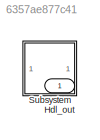
MODEL slx_6357ae877c41
KIND model
CONFIG AbsTol = auto
CONFIG EnableMultiTasking = off
CONFIG FixedStep = auto
CONFIG MaxStep = auto
CONFIG MinStep = auto
CONFIG RelTol = 1e-3
CONFIG SampleTimeConstraint = Unconstrained
CONFIG SolverName = VariableStepAuto
CONFIG StartTime = 0.0
CONFIG StopTime = 10.0
BLOCK [Outport] Hdl_out
  OutDataTypeStr = uint8
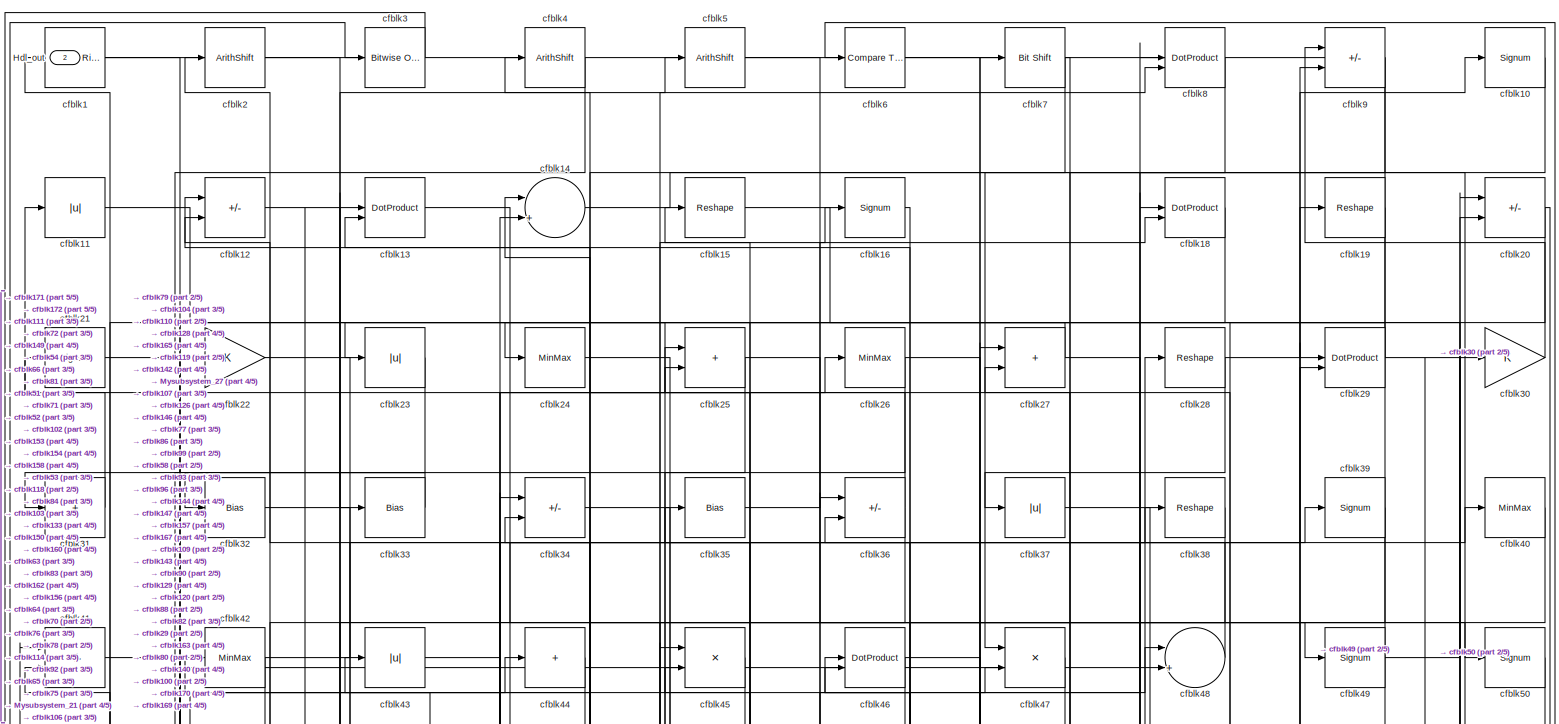
[diagram: Subsystem - part 1/5, full width, top band]
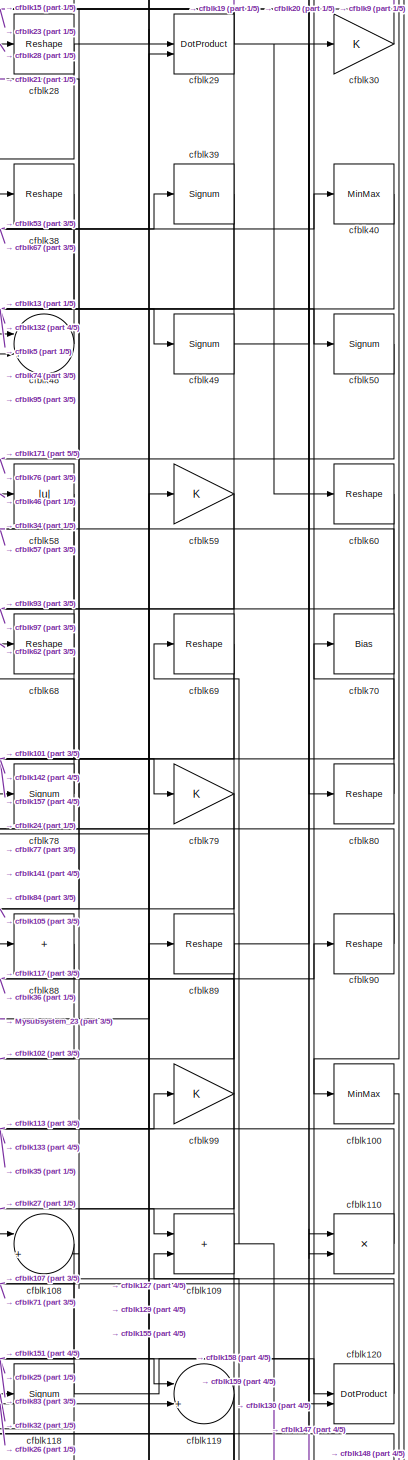
[diagram: Subsystem - part 2/5, middle right region]
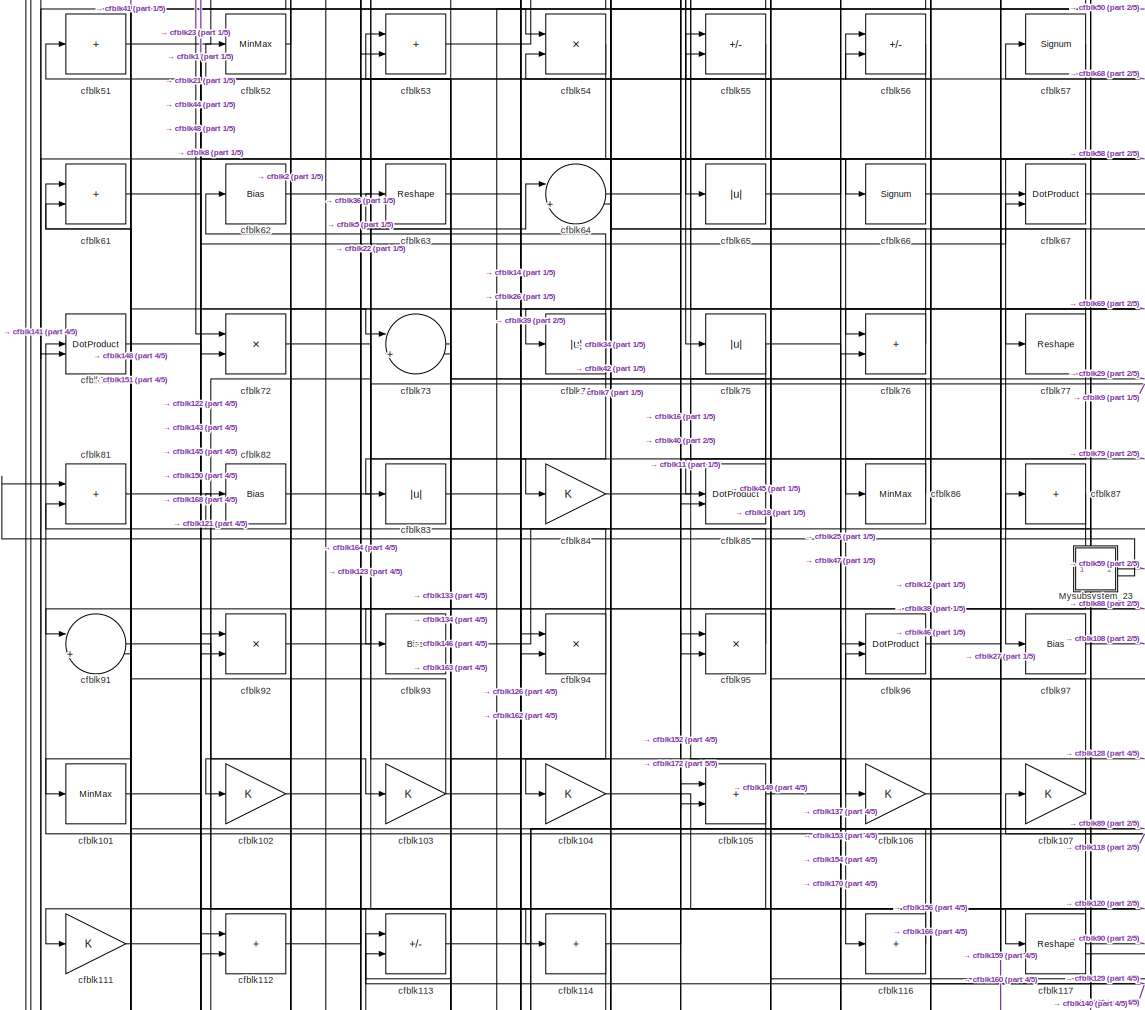
[diagram: Subsystem - part 3/5, central region]
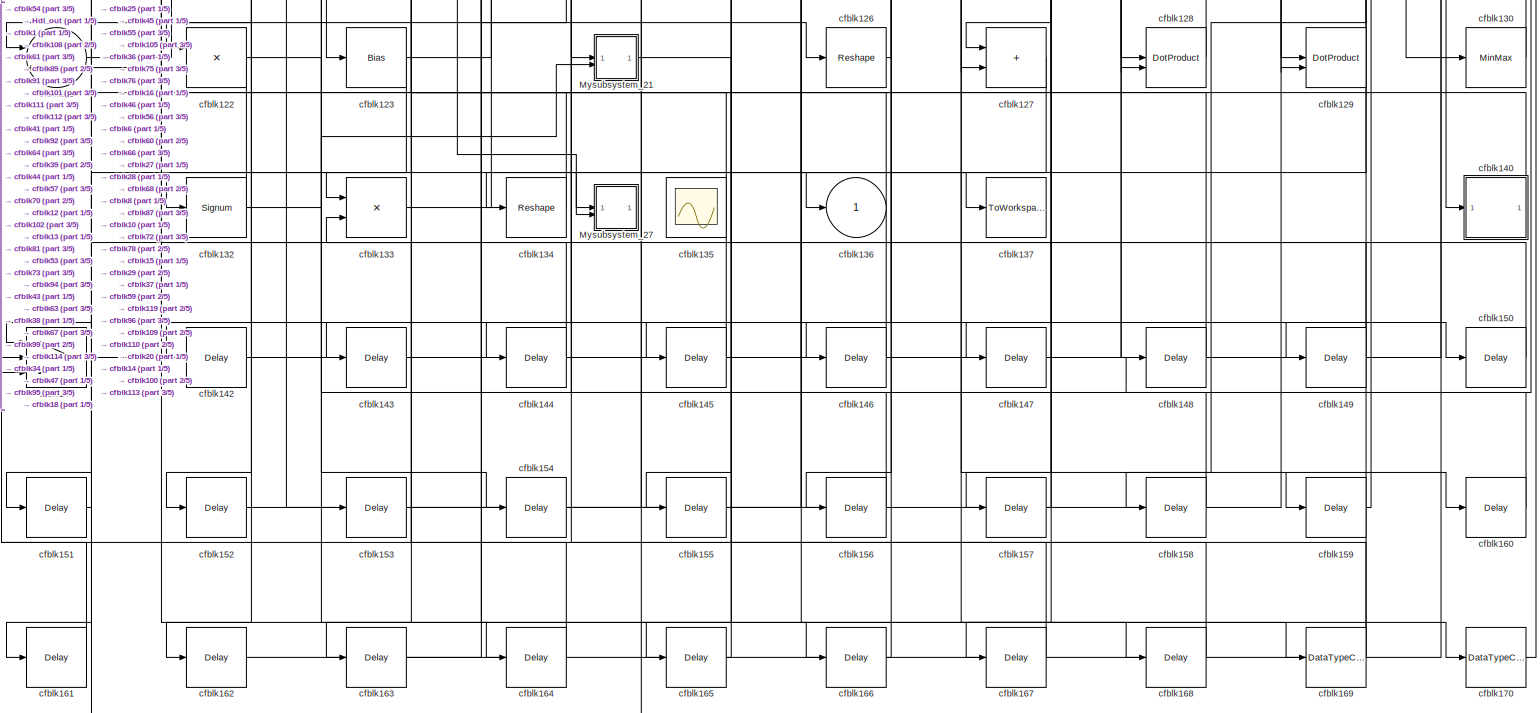
[diagram: Subsystem - part 4/5, full width, bottom band]
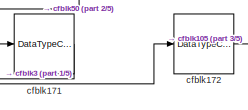
[diagram: Subsystem - part 5/5, bottom left region]
BLOCK [SubSystem] Subsystem
BLOCK [Outport] Subsystem/Hdl_out
  OutDataTypeStr = uint8
  Port = 2
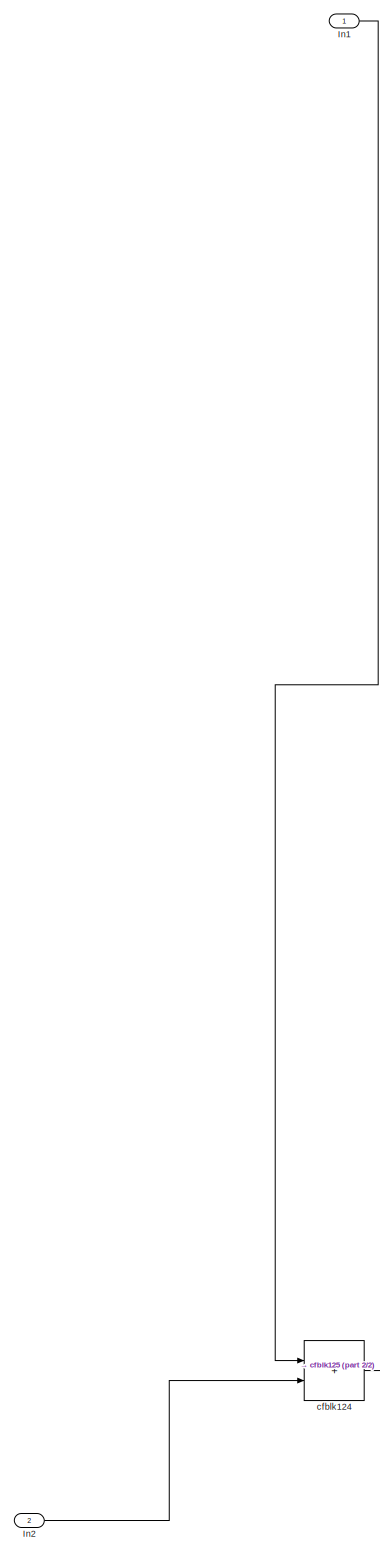
[diagram: Subsystem/Mysubsystem_21 - part 1/2, center side, full height]
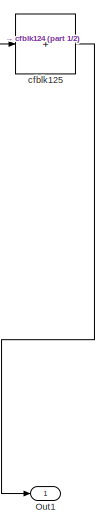
[diagram: Subsystem/Mysubsystem_21 - part 2/2, bottom right region]
BLOCK [SubSystem] Subsystem/Mysubsystem_21
  RTWFcnName = Mysubsystem_21
  RTWFcnNameOpts = User specified
  RTWFileNameOpts = Use function name
  RTWSystemCode = Reusable function
  TreatAsAtomicUnit = on
BLOCK [Inport] Subsystem/Mysubsystem_21/In1
BLOCK [Inport] Subsystem/Mysubsystem_21/In2
  Port = 2
BLOCK [Outport] Subsystem/Mysubsystem_21/Out1
BLOCK [Sum] Subsystem/Mysubsystem_21/cfblk124
  IconShape = rectangular
BLOCK [Sum] Subsystem/Mysubsystem_21/cfblk125
  IconShape = rectangular
  Inputs = +
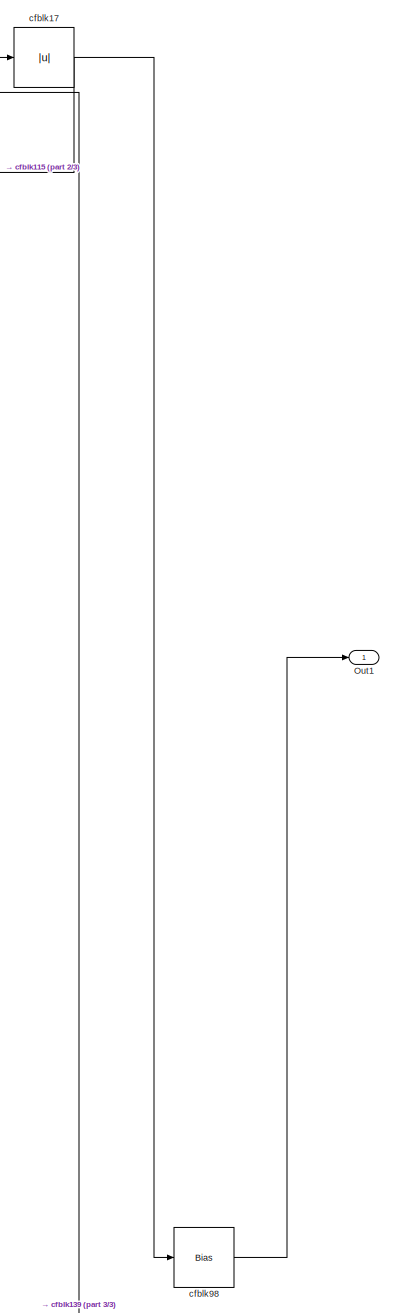
[diagram: Subsystem/Mysubsystem_23 - part 1/3, middle right region]
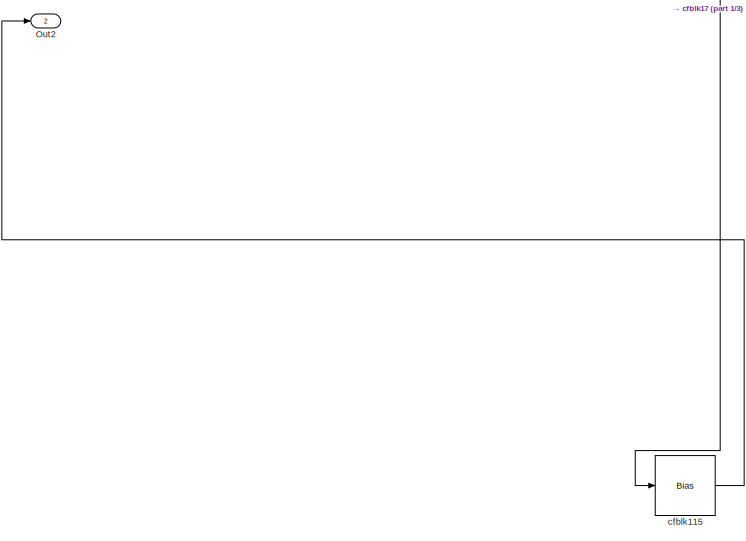
[diagram: Subsystem/Mysubsystem_23 - part 2/3, bottom left region]
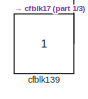
[diagram: Subsystem/Mysubsystem_23 - part 3/3, bottom right region]
BLOCK [SubSystem] Subsystem/Mysubsystem_23
  RTWFcnName = Mysubsystem_23
  RTWFcnNameOpts = User specified
  RTWFileNameOpts = Use function name
  RTWSystemCode = Reusable function
  TreatAsAtomicUnit = on
BLOCK [Outport] Subsystem/Mysubsystem_23/Out1
BLOCK [Outport] Subsystem/Mysubsystem_23/Out2
  Port = 2
BLOCK [Bias] Subsystem/Mysubsystem_23/cfblk115
  Bias = 0.0
  SaturateOnIntegerOverflow = off
BLOCK [Constant] Subsystem/Mysubsystem_23/cfblk139
  SampleTime = -1
BLOCK [Abs] Subsystem/Mysubsystem_23/cfblk17
  SaturateOnIntegerOverflow = off
BLOCK [Bias] Subsystem/Mysubsystem_23/cfblk98
  Bias = 0.0
  SaturateOnIntegerOverflow = off
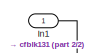
[diagram: Subsystem/Mysubsystem_27 - part 1/2, top right region]
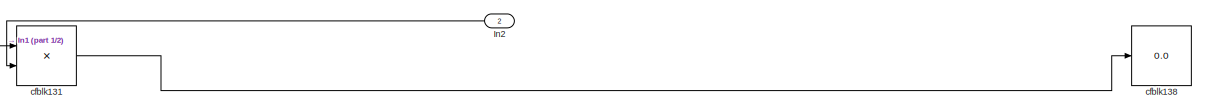
[diagram: Subsystem/Mysubsystem_27 - part 2/2, full width, bottom band]
BLOCK [SubSystem] Subsystem/Mysubsystem_27
  RTWFcnName = Mysubsystem_27
  RTWFcnNameOpts = User specified
  RTWFileNameOpts = Use function name
  RTWSystemCode = Reusable function
  TreatAsAtomicUnit = on
BLOCK [Inport] Subsystem/Mysubsystem_27/In1
BLOCK [Inport] Subsystem/Mysubsystem_27/In2
  Port = 2
BLOCK [Product] Subsystem/Mysubsystem_27/cfblk131
  Inputs = */
  RndMeth = Zero
  SaturateOnIntegerOverflow = on
BLOCK [Display] Subsystem/Mysubsystem_27/cfblk138
  Decimation = 1
BLOCK [Reference] Subsystem/cfblk1  REF=hdlsllib/Logic and Bit
Operations/Detect Rise
Nonnegative
  SourceBlock = hdlsllib/Logic and Bit\nOperations/Detect Rise\nNonnegative
  SourceType = Detect Rise Nonnegative
BLOCK [Signum] Subsystem/cfblk10
BLOCK [MinMax] Subsystem/cfblk100
  OutDataTypeStr = uint8
BLOCK [MinMax] Subsystem/cfblk101
  OutDataTypeStr = uint8
BLOCK [Gain] Subsystem/cfblk102
  OutDataTypeStr = uint8
BLOCK [Gain] Subsystem/cfblk103
  OutDataTypeStr = uint8
BLOCK [Gain] Subsystem/cfblk104
  OutDataTypeStr = uint8
BLOCK [Sum] Subsystem/cfblk105
  IconShape = rectangular
  OutDataTypeStr = uint8
BLOCK [Gain] Subsystem/cfblk106
  OutDataTypeStr = uint8
BLOCK [Gain] Subsystem/cfblk107
  OutDataTypeStr = uint8
BLOCK [Sum] Subsystem/cfblk108
  Inputs = |++
  OutDataTypeStr = uint8
BLOCK [Sum] Subsystem/cfblk109
  IconShape = rectangular
  OutDataTypeStr = uint8
BLOCK [Abs] Subsystem/cfblk11
  OutDataTypeStr = uint8
  SaturateOnIntegerOverflow = off
BLOCK [Product] Subsystem/cfblk110
  Inputs = */
  OutDataTypeStr = uint8
  RndMeth = Zero
  SaturateOnIntegerOverflow = on
BLOCK [Gain] Subsystem/cfblk111
  OutDataTypeStr = uint8
BLOCK [Sum] Subsystem/cfblk112
  IconShape = rectangular
  OutDataTypeStr = uint8
BLOCK [Sum] Subsystem/cfblk113
  IconShape = rectangular
  Inputs = +-
  OutDataTypeStr = uint8
BLOCK [Sum] Subsystem/cfblk114
  IconShape = rectangular
  Inputs = +
  OutDataTypeStr = uint8
BLOCK [Sum] Subsystem/cfblk116
  IconShape = rectangular
  Inputs = +
  OutDataTypeStr = uint8
BLOCK [Reshape] Subsystem/cfblk117
BLOCK [Signum] Subsystem/cfblk118
BLOCK [Sum] Subsystem/cfblk119
  Inputs = |++
  OutDataTypeStr = uint8
BLOCK [Sum] Subsystem/cfblk12
  IconShape = rectangular
  Inputs = +-
  OutDataTypeStr = uint8
BLOCK [DotProduct] Subsystem/cfblk120
  OutDataTypeStr = uint8
BLOCK [Sum] Subsystem/cfblk121
  Inputs = |++
  OutDataTypeStr = uint8
BLOCK [Product] Subsystem/cfblk122
  Inputs = */
  OutDataTypeStr = uint8
  RndMeth = Zero
  SaturateOnIntegerOverflow = on
BLOCK [Bias] Subsystem/cfblk123
  Bias = 0.0
  SaturateOnIntegerOverflow = off
BLOCK [Reshape] Subsystem/cfblk126
BLOCK [Sum] Subsystem/cfblk127
  IconShape = rectangular
  OutDataTypeStr = uint8
BLOCK [DotProduct] Subsystem/cfblk128
  OutDataTypeStr = uint8
BLOCK [DotProduct] Subsystem/cfblk129
  OutDataTypeStr = uint8
BLOCK [DotProduct] Subsystem/cfblk13
  OutDataTypeStr = uint8
BLOCK [MinMax] Subsystem/cfblk130
  OutDataTypeStr = uint8
BLOCK [Signum] Subsystem/cfblk132
BLOCK [Product] Subsystem/cfblk133
  Inputs = */
  OutDataTypeStr = uint8
  RndMeth = Zero
  SaturateOnIntegerOverflow = on
BLOCK [Reshape] Subsystem/cfblk134
BLOCK [Scope] Subsystem/cfblk135
  Floating = on
  NumInputPorts = 1
  ScopeSpecificationString = Simulink.scopes.TimeScopeBlockCfg('CurrentConfiguration', extmgr.ConfigurationSet(extmgr.Configuration('Core','General UI',true,'FigureColor',[0.156862745098039 0.156862745098039 0.156862745098039]),extmgr.Configuration('Core','Source UI',true),extmgr.Configuration('Sources','WiredSimulink',true,'DataLoggingSaveFormat','StructureWithTime','DataLoggingLimitDataPoints',true,'DataLoggingDecimation','...<+2674ch>
BLOCK [Outport] Subsystem/cfblk136
  OutDataTypeStr = uint8
  VectorParamsAs1DForOutWhenUnconnected = off
BLOCK [ToWorkspace] Subsystem/cfblk137
  MaxDataPoints = inf
  SampleTime = -1
  SaveFormat = Timeseries
  VariableName = simout
BLOCK [Sum] Subsystem/cfblk14
  Inputs = |++
  OutDataTypeStr = uint8
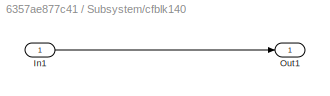
BLOCK [SubSystem] Subsystem/cfblk140
  LibrarySourceBlock = hdlsllib/Ports &\nSubsystems/Subsystem
BLOCK [Inport] Subsystem/cfblk140/In1
BLOCK [Outport] Subsystem/cfblk140/Out1
BLOCK [Switch] Subsystem/cfblk141
  InputSameDT = off
  OutDataTypeStr = uint8
  SaturateOnIntegerOverflow = off
BLOCK [Delay] Subsystem/cfblk142
  InputPortMap = u0
  SampleTime = 1
BLOCK [Delay] Subsystem/cfblk143
  InputPortMap = u0
  SampleTime = 1
BLOCK [Delay] Subsystem/cfblk144
  InputPortMap = u0
  SampleTime = 1
BLOCK [Delay] Subsystem/cfblk145
  InputPortMap = u0
  SampleTime = 1
BLOCK [Delay] Subsystem/cfblk146
  InputPortMap = u0
  SampleTime = 1
BLOCK [Delay] Subsystem/cfblk147
  InputPortMap = u0
  SampleTime = 1
BLOCK [Delay] Subsystem/cfblk148
  InputPortMap = u0
  SampleTime = 1
BLOCK [Delay] Subsystem/cfblk149
  InputPortMap = u0
  SampleTime = 1
BLOCK [Reshape] Subsystem/cfblk15
BLOCK [Delay] Subsystem/cfblk150
  InputPortMap = u0
  SampleTime = 1
BLOCK [Delay] Subsystem/cfblk151
  InputPortMap = u0
  SampleTime = 1
BLOCK [Delay] Subsystem/cfblk152
  InputPortMap = u0
  SampleTime = 1
BLOCK [Delay] Subsystem/cfblk153
  InputPortMap = u0
  SampleTime = 1
BLOCK [Delay] Subsystem/cfblk154
  InputPortMap = u0
  SampleTime = 1
BLOCK [Delay] Subsystem/cfblk155
  InputPortMap = u0
  SampleTime = 1
BLOCK [Delay] Subsystem/cfblk156
  InputPortMap = u0
  SampleTime = 1
BLOCK [Delay] Subsystem/cfblk157
  InputPortMap = u0
  SampleTime = 1
BLOCK [Delay] Subsystem/cfblk158
  InputPortMap = u0
  SampleTime = 1
BLOCK [Delay] Subsystem/cfblk159
  InputPortMap = u0
  SampleTime = 1
BLOCK [Signum] Subsystem/cfblk16
BLOCK [Delay] Subsystem/cfblk160
  InputPortMap = u0
  SampleTime = 1
BLOCK [Delay] Subsystem/cfblk161
  InputPortMap = u0
  SampleTime = 1
BLOCK [Delay] Subsystem/cfblk162
  InputPortMap = u0
  SampleTime = 1
BLOCK [Delay] Subsystem/cfblk163
  InputPortMap = u0
  SampleTime = 1
BLOCK [Delay] Subsystem/cfblk164
  InputPortMap = u0
  SampleTime = 1
BLOCK [Delay] Subsystem/cfblk165
  InputPortMap = u0
  SampleTime = 1
BLOCK [Delay] Subsystem/cfblk166
  InputPortMap = u0
  SampleTime = 1
BLOCK [Delay] Subsystem/cfblk167
  InputPortMap = u0
  SampleTime = 1
BLOCK [Delay] Subsystem/cfblk168
  InputPortMap = u0
  SampleTime = 1
BLOCK [DataTypeConversion] Subsystem/cfblk169
  OutDataTypeStr = uint8
  RndMeth = Floor
  SaturateOnIntegerOverflow = off
BLOCK [DataTypeConversion] Subsystem/cfblk170
  OutDataTypeStr = uint8
  RndMeth = Floor
  SaturateOnIntegerOverflow = off
BLOCK [DataTypeConversion] Subsystem/cfblk171
  OutDataTypeStr = uint8
  RndMeth = Floor
  SaturateOnIntegerOverflow = off
BLOCK [DataTypeConversion] Subsystem/cfblk172
  OutDataTypeStr = uint8
  RndMeth = Floor
  SaturateOnIntegerOverflow = off
BLOCK [DotProduct] Subsystem/cfblk18
  OutDataTypeStr = uint8
BLOCK [Reshape] Subsystem/cfblk19
BLOCK [ArithShift] Subsystem/cfblk2
  BitShiftNumber = 8
  InputPortMap = u0
BLOCK [Sum] Subsystem/cfblk20
  IconShape = rectangular
  Inputs = +-
  OutDataTypeStr = uint8
BLOCK [Signum] Subsystem/cfblk21
BLOCK [Gain] Subsystem/cfblk22
  OutDataTypeStr = uint8
BLOCK [Abs] Subsystem/cfblk23
  OutDataTypeStr = uint8
  SaturateOnIntegerOverflow = off
BLOCK [MinMax] Subsystem/cfblk24
  OutDataTypeStr = uint8
BLOCK [Sum] Subsystem/cfblk25
  IconShape = rectangular
  OutDataTypeStr = uint8
BLOCK [MinMax] Subsystem/cfblk26
  OutDataTypeStr = uint8
BLOCK [Sum] Subsystem/cfblk27
  IconShape = rectangular
  OutDataTypeStr = uint8
BLOCK [Reshape] Subsystem/cfblk28
BLOCK [DotProduct] Subsystem/cfblk29
  OutDataTypeStr = uint8
BLOCK [Reference] Subsystem/cfblk3  REF=simulink/Logic and Bit
Operations/Bitwise
Operator
  LibrarySourceBlock = hdlsllib/Logic and Bit\nOperations/Bitwise\nOperator
  SourceBlock = simulink/Logic and Bit\nOperations/Bitwise\nOperator
  SourceType = Bitwise Operator
BLOCK [Gain] Subsystem/cfblk30
  OutDataTypeStr = uint8
BLOCK [Sum] Subsystem/cfblk31
  IconShape = rectangular
  Inputs = +
  OutDataTypeStr = uint8
BLOCK [Bias] Subsystem/cfblk32
  Bias = 0.0
  SaturateOnIntegerOverflow = off
BLOCK [Bias] Subsystem/cfblk33
  Bias = 0.0
  SaturateOnIntegerOverflow = off
BLOCK [Sum] Subsystem/cfblk34
  IconShape = rectangular
  Inputs = +-
  OutDataTypeStr = uint8
BLOCK [Bias] Subsystem/cfblk35
  Bias = 0.0
  SaturateOnIntegerOverflow = off
BLOCK [Sum] Subsystem/cfblk36
  IconShape = rectangular
  Inputs = +-
  OutDataTypeStr = uint8
BLOCK [Abs] Subsystem/cfblk37
  OutDataTypeStr = uint8
  SaturateOnIntegerOverflow = off
BLOCK [Reshape] Subsystem/cfblk38
BLOCK [Signum] Subsystem/cfblk39
BLOCK [ArithShift] Subsystem/cfblk4
  BitShiftNumber = 8
  InputPortMap = u0
BLOCK [MinMax] Subsystem/cfblk40
  OutDataTypeStr = uint8
BLOCK [Sum] Subsystem/cfblk41
  IconShape = rectangular
  Inputs = +-
  OutDataTypeStr = uint8
BLOCK [MinMax] Subsystem/cfblk42
  OutDataTypeStr = uint8
BLOCK [Abs] Subsystem/cfblk43
  OutDataTypeStr = uint8
  SaturateOnIntegerOverflow = off
BLOCK [Sum] Subsystem/cfblk44
  IconShape = rectangular
  Inputs = +
  OutDataTypeStr = uint8
BLOCK [Product] Subsystem/cfblk45
  Inputs = */
  OutDataTypeStr = uint8
  RndMeth = Zero
  SaturateOnIntegerOverflow = on
BLOCK [DotProduct] Subsystem/cfblk46
  OutDataTypeStr = uint8
BLOCK [Product] Subsystem/cfblk47
  Inputs = */
  OutDataTypeStr = uint8
  RndMeth = Zero
  SaturateOnIntegerOverflow = on
BLOCK [Sum] Subsystem/cfblk48
  Inputs = |++
  OutDataTypeStr = uint8
BLOCK [Signum] Subsystem/cfblk49
BLOCK [ArithShift] Subsystem/cfblk5
  BitShiftNumber = 8
  InputPortMap = u0
BLOCK [Signum] Subsystem/cfblk50
BLOCK [Sum] Subsystem/cfblk51
  IconShape = rectangular
  Inputs = +
  OutDataTypeStr = uint8
BLOCK [MinMax] Subsystem/cfblk52
  OutDataTypeStr = uint8
BLOCK [Sum] Subsystem/cfblk53
  IconShape = rectangular
  OutDataTypeStr = uint8
BLOCK [Product] Subsystem/cfblk54
  Inputs = */
  OutDataTypeStr = uint8
  RndMeth = Zero
  SaturateOnIntegerOverflow = on
BLOCK [Sum] Subsystem/cfblk55
  IconShape = rectangular
  Inputs = +-
  OutDataTypeStr = uint8
BLOCK [Sum] Subsystem/cfblk56
  IconShape = rectangular
  Inputs = +-
  OutDataTypeStr = uint8
BLOCK [Signum] Subsystem/cfblk57
BLOCK [Abs] Subsystem/cfblk58
  OutDataTypeStr = uint8
  SaturateOnIntegerOverflow = off
BLOCK [Gain] Subsystem/cfblk59
  OutDataTypeStr = uint8
BLOCK [Reference] Subsystem/cfblk6  REF=hdlsllib/Logic and Bit
Operations/Compare
To Constant
  SourceBlock = hdlsllib/Logic and Bit\nOperations/Compare\nTo Constant
  SourceType = Compare To Constant
BLOCK [Reshape] Subsystem/cfblk60
BLOCK [Sum] Subsystem/cfblk61
  IconShape = rectangular
  OutDataTypeStr = uint8
BLOCK [Bias] Subsystem/cfblk62
  Bias = 0.0
  SaturateOnIntegerOverflow = off
BLOCK [Reshape] Subsystem/cfblk63
BLOCK [Sum] Subsystem/cfblk64
  Inputs = |++
  OutDataTypeStr = uint8
BLOCK [Abs] Subsystem/cfblk65
  OutDataTypeStr = uint8
  SaturateOnIntegerOverflow = off
BLOCK [Signum] Subsystem/cfblk66
BLOCK [DotProduct] Subsystem/cfblk67
  OutDataTypeStr = uint8
BLOCK [Reshape] Subsystem/cfblk68
BLOCK [Reshape] Subsystem/cfblk69
BLOCK [Reference] Subsystem/cfblk7  REF=hdlsllib/Logic and Bit
Operations/Bit Shift
  SourceBlock = hdlsllib/Logic and Bit\nOperations/Bit Shift
  SourceType = Bit Shift
BLOCK [Bias] Subsystem/cfblk70
  Bias = 0.0
  SaturateOnIntegerOverflow = off
BLOCK [DotProduct] Subsystem/cfblk71
  OutDataTypeStr = uint8
BLOCK [Product] Subsystem/cfblk72
  Inputs = */
  OutDataTypeStr = uint8
  RndMeth = Zero
  SaturateOnIntegerOverflow = on
BLOCK [Sum] Subsystem/cfblk73
  Inputs = |++
  OutDataTypeStr = uint8
BLOCK [Abs] Subsystem/cfblk74
  OutDataTypeStr = uint8
  SaturateOnIntegerOverflow = off
BLOCK [Abs] Subsystem/cfblk75
  OutDataTypeStr = uint8
  SaturateOnIntegerOverflow = off
BLOCK [Sum] Subsystem/cfblk76
  IconShape = rectangular
  OutDataTypeStr = uint8
BLOCK [Reshape] Subsystem/cfblk77
BLOCK [Signum] Subsystem/cfblk78
BLOCK [Gain] Subsystem/cfblk79
  OutDataTypeStr = uint8
BLOCK [DotProduct] Subsystem/cfblk8
  OutDataTypeStr = uint8
BLOCK [Reshape] Subsystem/cfblk80
BLOCK [Sum] Subsystem/cfblk81
  IconShape = rectangular
  OutDataTypeStr = uint8
BLOCK [Bias] Subsystem/cfblk82
  Bias = 0.0
  SaturateOnIntegerOverflow = off
BLOCK [Abs] Subsystem/cfblk83
  OutDataTypeStr = uint8
  SaturateOnIntegerOverflow = off
BLOCK [Gain] Subsystem/cfblk84
  OutDataTypeStr = uint8
BLOCK [DotProduct] Subsystem/cfblk85
  OutDataTypeStr = uint8
BLOCK [MinMax] Subsystem/cfblk86
  OutDataTypeStr = uint8
BLOCK [Sum] Subsystem/cfblk87
  IconShape = rectangular
  Inputs = +
  OutDataTypeStr = uint8
BLOCK [Sum] Subsystem/cfblk88
  IconShape = rectangular
  Inputs = +
  OutDataTypeStr = uint8
BLOCK [Reshape] Subsystem/cfblk89
BLOCK [Sum] Subsystem/cfblk9
  IconShape = rectangular
  Inputs = +-
  OutDataTypeStr = uint8
BLOCK [Reshape] Subsystem/cfblk90
BLOCK [Sum] Subsystem/cfblk91
  Inputs = |++
  OutDataTypeStr = uint8
BLOCK [Product] Subsystem/cfblk92
  Inputs = */
  OutDataTypeStr = uint8
  RndMeth = Zero
  SaturateOnIntegerOverflow = on
BLOCK [Bias] Subsystem/cfblk93
  Bias = 0.0
  SaturateOnIntegerOverflow = off
BLOCK [Product] Subsystem/cfblk94
  Inputs = */
  OutDataTypeStr = uint8
  RndMeth = Zero
  SaturateOnIntegerOverflow = on
BLOCK [Product] Subsystem/cfblk95
  Inputs = */
  OutDataTypeStr = uint8
  RndMeth = Zero
  SaturateOnIntegerOverflow = on
BLOCK [DotProduct] Subsystem/cfblk96
  OutDataTypeStr = uint8
BLOCK [Bias] Subsystem/cfblk97
  Bias = 0.0
  SaturateOnIntegerOverflow = off
BLOCK [Gain] Subsystem/cfblk99
  OutDataTypeStr = uint8
LINE Subsystem/Mysubsystem_21/In1:1 -> Subsystem/Mysubsystem_21/cfblk124:1
LINE Subsystem/Mysubsystem_21/In2:1 -> Subsystem/Mysubsystem_21/cfblk124:2
LINE Subsystem/Mysubsystem_21/cfblk124:1 -> Subsystem/Mysubsystem_21/cfblk125:1
LINE Subsystem/Mysubsystem_21/cfblk125:1 -> Subsystem/Mysubsystem_21/Out1:1
LINE Subsystem/Mysubsystem_21:1 -> Subsystem/cfblk155:1
LINE Subsystem/Mysubsystem_23/cfblk115:1 -> Subsystem/Mysubsystem_23/Out2:1
LINE Subsystem/Mysubsystem_23/cfblk139:1 -> Subsystem/Mysubsystem_23/cfblk17:1
NET Subsystem/Mysubsystem_23/cfblk17:1 -> Subsystem/Mysubsystem_23/cfblk115:1, Subsystem/Mysubsystem_23/cfblk98:1
LINE Subsystem/Mysubsystem_23/cfblk98:1 -> Subsystem/Mysubsystem_23/Out1:1
LINE Subsystem/Mysubsystem_23:1 -> Subsystem/cfblk59:1
LINE Subsystem/Mysubsystem_23:2 -> Subsystem/cfblk81:1
LINE Subsystem/Mysubsystem_27/In1:1 -> Subsystem/Mysubsystem_27/cfblk131:1
LINE Subsystem/Mysubsystem_27/In2:1 -> Subsystem/Mysubsystem_27/cfblk131:2
LINE Subsystem/Mysubsystem_27/cfblk131:1 -> Subsystem/Mysubsystem_27/cfblk138:1
LINE Subsystem/cfblk100:1 -> Subsystem/cfblk148:1
LINE Subsystem/cfblk101:1 -> Subsystem/cfblk143:1
NET Subsystem/cfblk102:1 -> Subsystem/cfblk164:1, Subsystem/cfblk5:1
NET Subsystem/cfblk103:1 -> Subsystem/cfblk25:1, Subsystem/cfblk41:2
LINE Subsystem/cfblk104:1 -> Subsystem/cfblk117:1
NET Subsystem/cfblk105:1 -> Subsystem/cfblk122:2, Subsystem/cfblk137:1
LINE Subsystem/cfblk106:1 -> Subsystem/cfblk27:1
LINE Subsystem/cfblk107:1 -> Subsystem/cfblk46:2
LINE Subsystem/cfblk108:1 -> Subsystem/cfblk151:1
NET Subsystem/cfblk109:1 -> Subsystem/cfblk130:1, Subsystem/cfblk69:1
LINE Subsystem/cfblk10:1 -> Subsystem/cfblk128:2
LINE Subsystem/cfblk110:1 -> Subsystem/cfblk35:1
NET Subsystem/cfblk111:1 -> Subsystem/cfblk168:1, Subsystem/cfblk48:2, Subsystem/cfblk67:2, Subsystem/cfblk92:2
LINE Subsystem/cfblk112:1 -> Subsystem/cfblk56:1
LINE Subsystem/cfblk113:1 -> Subsystem/cfblk89:1
NET Subsystem/cfblk114:1 -> Subsystem/cfblk121:1, Subsystem/cfblk8:2
LINE Subsystem/cfblk116:1 -> Subsystem/cfblk61:1
NET Subsystem/cfblk117:1 -> Subsystem/cfblk55:1, Subsystem/cfblk90:1
NET Subsystem/cfblk118:1 -> Subsystem/cfblk120:1, Subsystem/cfblk71:1
LINE Subsystem/cfblk119:1 -> Subsystem/cfblk158:1
LINE Subsystem/cfblk11:1 -> Subsystem/cfblk75:1
NET Subsystem/cfblk120:1 -> Subsystem/cfblk107:1, Subsystem/cfblk21:1
LINE Subsystem/cfblk121:1 -> Subsystem/cfblk64:1
LINE Subsystem/cfblk122:1 -> Subsystem/cfblk145:1
NET Subsystem/cfblk123:1 -> Subsystem/cfblk161:1, Subsystem/cfblk67:1
LINE Subsystem/cfblk126:1 -> Subsystem/cfblk46:1
NET Subsystem/cfblk127:1 -> Subsystem/Mysubsystem_27:2, Subsystem/cfblk134:1
LINE Subsystem/cfblk128:1 -> Subsystem/cfblk15:1
NET Subsystem/cfblk129:1 -> Subsystem/cfblk136:1, Subsystem/cfblk152:1, Subsystem/cfblk96:2
NET Subsystem/cfblk12:1 -> Subsystem/cfblk153:1, Subsystem/cfblk154:1
LINE Subsystem/cfblk130:1 -> Subsystem/cfblk113:1
NET Subsystem/cfblk132:1 -> Subsystem/Mysubsystem_21:2, Subsystem/cfblk121:2
NET Subsystem/cfblk133:1 -> Subsystem/cfblk166:1, Subsystem/cfblk38:1, Subsystem/cfblk99:1
LINE Subsystem/cfblk134:1 -> Subsystem/cfblk113:2
LINE Subsystem/cfblk13:1 -> Subsystem/cfblk50:1
LINE Subsystem/cfblk140/In1:1 -> Subsystem/cfblk140/Out1:1
NET Subsystem/cfblk140:1 -> Subsystem/cfblk53:1, Subsystem/cfblk87:1
LINE Subsystem/cfblk141:1 -> Subsystem/cfblk78:1
LINE Subsystem/cfblk142:1 -> Subsystem/cfblk36:1
LINE Subsystem/cfblk143:1 -> Subsystem/cfblk18:1
LINE Subsystem/cfblk144:1 -> Subsystem/cfblk1:1
LINE Subsystem/cfblk145:1 -> Subsystem/cfblk92:1
LINE Subsystem/cfblk146:1 -> Subsystem/cfblk73:2
LINE Subsystem/cfblk147:1 -> Subsystem/cfblk110:1
LINE Subsystem/cfblk148:1 -> Subsystem/cfblk61:2
LINE Subsystem/cfblk149:1 -> Subsystem/cfblk55:2
LINE Subsystem/cfblk14:1 -> Subsystem/cfblk140:1
LINE Subsystem/cfblk150:1 -> Subsystem/cfblk112:1
LINE Subsystem/cfblk151:1 -> Subsystem/cfblk91:2
LINE Subsystem/cfblk152:1 -> Subsystem/cfblk95:1
LINE Subsystem/cfblk153:1 -> Subsystem/cfblk96:1
LINE Subsystem/cfblk154:1 -> Subsystem/cfblk76:2
LINE Subsystem/cfblk155:1 -> Subsystem/cfblk29:2
LINE Subsystem/cfblk156:1 -> Subsystem/cfblk14:1
LINE Subsystem/cfblk157:1 -> Subsystem/cfblk27:2
LINE Subsystem/cfblk158:1 -> Subsystem/cfblk13:1
LINE Subsystem/cfblk159:1 -> Subsystem/cfblk109:2
LINE Subsystem/cfblk15:1 -> Subsystem/cfblk80:1
LINE Subsystem/cfblk160:1 -> Subsystem/cfblk34:1
LINE Subsystem/cfblk161:1 -> Subsystem/cfblk141:2
LINE Subsystem/cfblk162:1 -> Subsystem/cfblk94:1
LINE Subsystem/cfblk163:1 -> Subsystem/cfblk20:2
LINE Subsystem/cfblk164:1 -> Subsystem/cfblk133:2
LINE Subsystem/cfblk165:1 -> Subsystem/cfblk45:2
LINE Subsystem/cfblk166:1 -> Subsystem/cfblk56:2
LINE Subsystem/cfblk167:1 -> Subsystem/cfblk25:2
LINE Subsystem/cfblk168:1 -> Subsystem/cfblk54:2
NET Subsystem/cfblk169:1 -> Subsystem/Hdl_out:1, Subsystem/cfblk41:1, Subsystem/cfblk43:1
LINE Subsystem/cfblk16:1 -> Subsystem/cfblk146:1
LINE Subsystem/cfblk170:1 -> Subsystem/cfblk6:1
LINE Subsystem/cfblk171:1 -> Subsystem/cfblk3:1
LINE Subsystem/cfblk172:1 -> Subsystem/cfblk105:1
NET Subsystem/cfblk18:1 -> Subsystem/cfblk165:1, Subsystem/cfblk72:2
LINE Subsystem/cfblk19:1 -> Subsystem/cfblk88:1
LINE Subsystem/cfblk1:1 -> Subsystem/cfblk54:1
NET Subsystem/cfblk20:1 -> Subsystem/cfblk100:1, Subsystem/cfblk31:1
LINE Subsystem/cfblk21:1 -> Subsystem/cfblk66:1
LINE Subsystem/cfblk22:1 -> Subsystem/cfblk84:1
LINE Subsystem/cfblk23:1 -> Subsystem/cfblk72:1
LINE Subsystem/cfblk24:1 -> Subsystem/cfblk79:1
NET Subsystem/cfblk25:1 -> Subsystem/cfblk111:1, Subsystem/cfblk119:1
NET Subsystem/cfblk26:1 -> Subsystem/cfblk119:2, Subsystem/cfblk65:1
NET Subsystem/cfblk27:1 -> Subsystem/cfblk109:1, Subsystem/cfblk24:1
NET Subsystem/cfblk28:1 -> Subsystem/cfblk10:1, Subsystem/cfblk167:1
NET Subsystem/cfblk29:1 -> Subsystem/cfblk110:2, Subsystem/cfblk23:1, Subsystem/cfblk60:1
LINE Subsystem/cfblk2:1 -> Subsystem/cfblk33:1
LINE Subsystem/cfblk30:1 -> Subsystem/cfblk9:1
LINE Subsystem/cfblk31:1 -> Subsystem/cfblk11:1
LINE Subsystem/cfblk32:1 -> Subsystem/cfblk118:1
LINE Subsystem/cfblk33:1 -> Subsystem/cfblk32:1
NET Subsystem/cfblk34:1 -> Subsystem/Mysubsystem_21:1, Subsystem/cfblk106:1
LINE Subsystem/cfblk35:1 -> Subsystem/cfblk18:2
NET Subsystem/cfblk36:1 -> Subsystem/cfblk4:1, Subsystem/cfblk53:2
LINE Subsystem/cfblk37:1 -> Subsystem/cfblk129:1
LINE Subsystem/cfblk38:1 -> Subsystem/cfblk86:1
LINE Subsystem/cfblk39:1 -> Subsystem/cfblk132:1
LINE Subsystem/cfblk3:1 -> Subsystem/cfblk172:1
NET Subsystem/cfblk40:1 -> Subsystem/cfblk74:1, Subsystem/cfblk95:2
LINE Subsystem/cfblk41:1 -> Subsystem/cfblk149:1
NET Subsystem/cfblk42:1 -> Subsystem/cfblk19:1, Subsystem/cfblk71:2
LINE Subsystem/cfblk43:1 -> Subsystem/cfblk150:1
LINE Subsystem/cfblk44:1 -> Subsystem/cfblk162:1
LINE Subsystem/cfblk45:1 -> Subsystem/cfblk104:1
NET Subsystem/cfblk46:1 -> Subsystem/Mysubsystem_27:1, Subsystem/cfblk58:1
LINE Subsystem/cfblk47:1 -> Subsystem/cfblk144:1
LINE Subsystem/cfblk48:1 -> Subsystem/cfblk12:2
LINE Subsystem/cfblk49:1 -> Subsystem/cfblk20:1
LINE Subsystem/cfblk4:1 -> Subsystem/cfblk22:1
NET Subsystem/cfblk50:1 -> Subsystem/cfblk171:1, Subsystem/cfblk76:1
LINE Subsystem/cfblk51:1 -> Subsystem/cfblk8:1
LINE Subsystem/cfblk52:1 -> Subsystem/cfblk2:1
LINE Subsystem/cfblk53:1 -> Subsystem/cfblk39:1
NET Subsystem/cfblk54:1 -> Subsystem/cfblk141:3, Subsystem/cfblk91:1
LINE Subsystem/cfblk55:1 -> Subsystem/cfblk112:2
NET Subsystem/cfblk56:1 -> Subsystem/cfblk116:1, Subsystem/cfblk85:2
LINE Subsystem/cfblk57:1 -> Subsystem/cfblk122:1
NET Subsystem/cfblk58:1 -> Subsystem/cfblk93:1, Subsystem/cfblk97:1
NET Subsystem/cfblk59:1 -> Subsystem/cfblk127:1, Subsystem/cfblk129:2
LINE Subsystem/cfblk5:1 -> Subsystem/cfblk49:1
LINE Subsystem/cfblk60:1 -> Subsystem/cfblk127:2
LINE Subsystem/cfblk61:1 -> Subsystem/cfblk73:1
LINE Subsystem/cfblk62:1 -> Subsystem/cfblk68:1
NET Subsystem/cfblk63:1 -> Subsystem/cfblk126:1, Subsystem/cfblk14:2
LINE Subsystem/cfblk64:1 -> Subsystem/cfblk16:1
LINE Subsystem/cfblk65:1 -> Subsystem/cfblk47:2
NET Subsystem/cfblk66:1 -> Subsystem/cfblk159:1, Subsystem/cfblk160:1
LINE Subsystem/cfblk67:1 -> Subsystem/cfblk40:1
NET Subsystem/cfblk68:1 -> Subsystem/cfblk157:1, Subsystem/cfblk57:1, Subsystem/cfblk77:1
LINE Subsystem/cfblk69:1 -> Subsystem/cfblk101:1
LINE Subsystem/cfblk6:1 -> Subsystem/cfblk169:1
NET Subsystem/cfblk70:1 -> Subsystem/cfblk142:1, Subsystem/cfblk34:2
LINE Subsystem/cfblk71:1 -> Subsystem/cfblk114:1
LINE Subsystem/cfblk72:1 -> Subsystem/cfblk128:1
LINE Subsystem/cfblk73:1 -> Subsystem/cfblk133:1
NET Subsystem/cfblk74:1 -> Subsystem/cfblk62:1, Subsystem/cfblk83:1
NET Subsystem/cfblk75:1 -> Subsystem/cfblk170:1, Subsystem/cfblk94:2
LINE Subsystem/cfblk76:1 -> Subsystem/cfblk42:1
NET Subsystem/cfblk77:1 -> Subsystem/cfblk12:1, Subsystem/cfblk85:1
LINE Subsystem/cfblk78:1 -> Subsystem/cfblk13:2
LINE Subsystem/cfblk79:1 -> Subsystem/cfblk105:2
NET Subsystem/cfblk7:1 -> Subsystem/cfblk37:1, Subsystem/cfblk64:2
LINE Subsystem/cfblk80:1 -> Subsystem/cfblk70:1
NET Subsystem/cfblk81:1 -> Subsystem/cfblk123:1, Subsystem/cfblk44:1
LINE Subsystem/cfblk82:1 -> Subsystem/cfblk9:2
NET Subsystem/cfblk83:1 -> Subsystem/cfblk120:2, Subsystem/cfblk26:1
LINE Subsystem/cfblk84:1 -> Subsystem/cfblk29:1
LINE Subsystem/cfblk85:1 -> Subsystem/cfblk51:1
LINE Subsystem/cfblk86:1 -> Subsystem/cfblk52:1
LINE Subsystem/cfblk87:1 -> Subsystem/cfblk156:1
LINE Subsystem/cfblk88:1 -> Subsystem/cfblk102:1
NET Subsystem/cfblk89:1 -> Subsystem/cfblk141:1, Subsystem/cfblk30:1
LINE Subsystem/cfblk8:1 -> Subsystem/cfblk147:1
LINE Subsystem/cfblk90:1 -> Subsystem/cfblk28:1
LINE Subsystem/cfblk91:1 -> Subsystem/cfblk103:1
LINE Subsystem/cfblk92:1 -> Subsystem/cfblk45:1
LINE Subsystem/cfblk93:1 -> Subsystem/cfblk7:1
NET Subsystem/cfblk94:1 -> Subsystem/cfblk163:1, Subsystem/cfblk81:2, Subsystem/cfblk82:1
LINE Subsystem/cfblk95:1 -> Subsystem/cfblk63:1
LINE Subsystem/cfblk96:1 -> Subsystem/cfblk48:1
LINE Subsystem/cfblk97:1 -> Subsystem/cfblk108:1
NET Subsystem/cfblk99:1 -> Subsystem/cfblk108:2, Subsystem/cfblk36:2
LINE Subsystem/cfblk9:1 -> Subsystem/cfblk47:1
LINE Subsystem:1 -> Hdl_out:1
note: NET lines group one-source signal fan-out (src -> all destinations, sorted); 1:1 wires keep LINE
